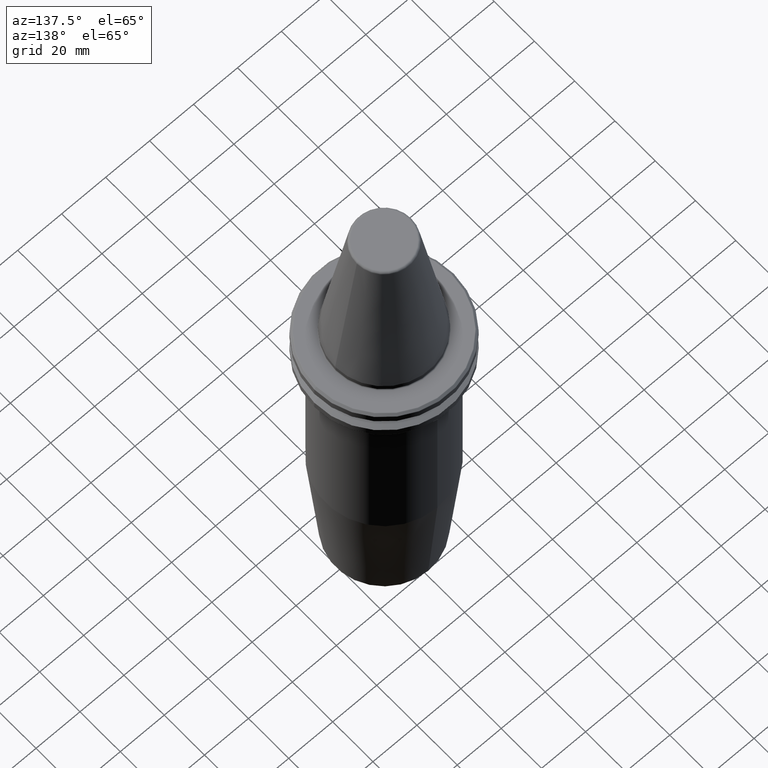
[diagram: clean part render]
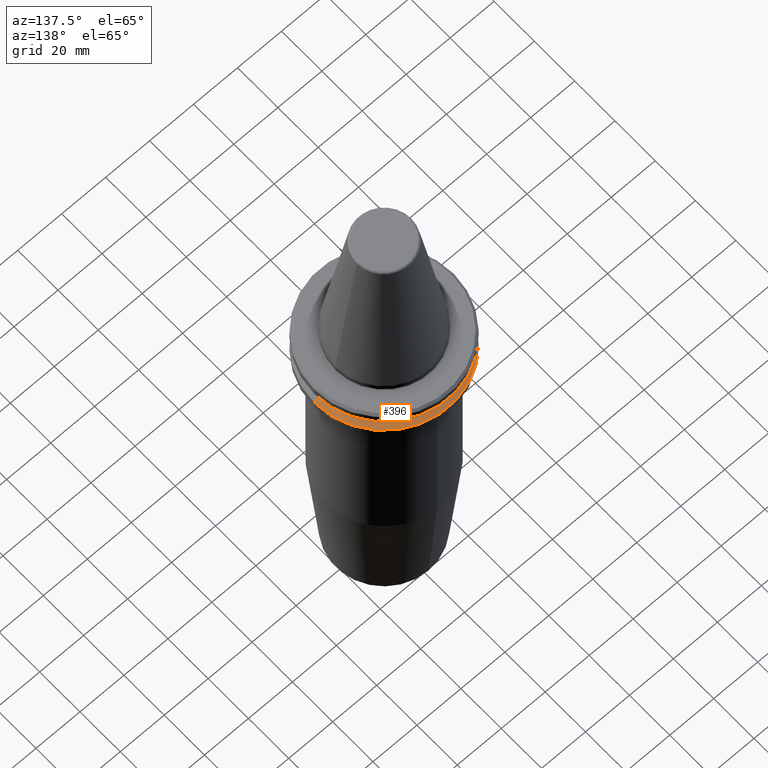
[diagram: same view with one face highlighted and labeled with its STEP entity id]
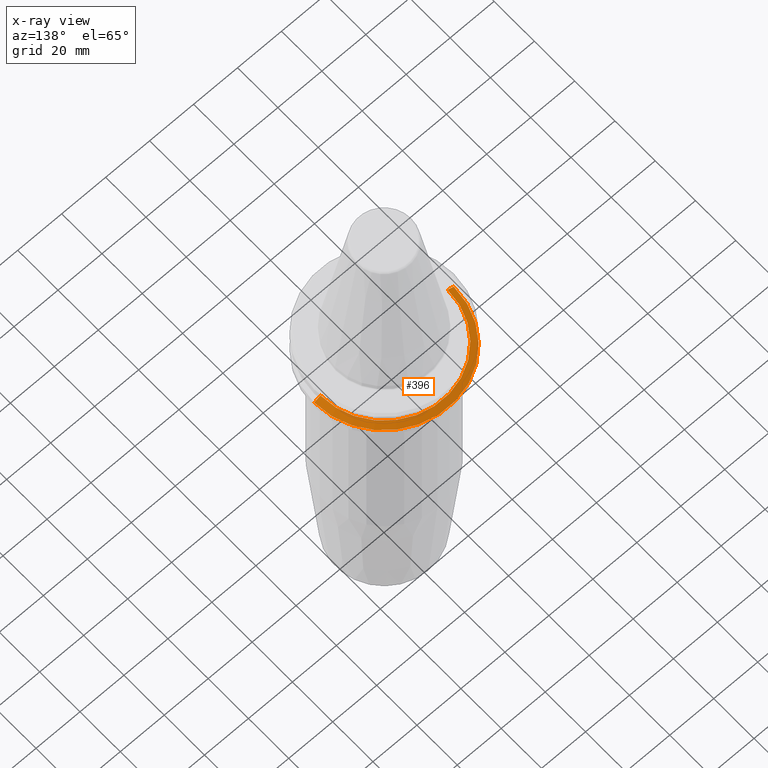
[diagram: x-ray of the same camera — body ghosted, the highlighted face saturated]
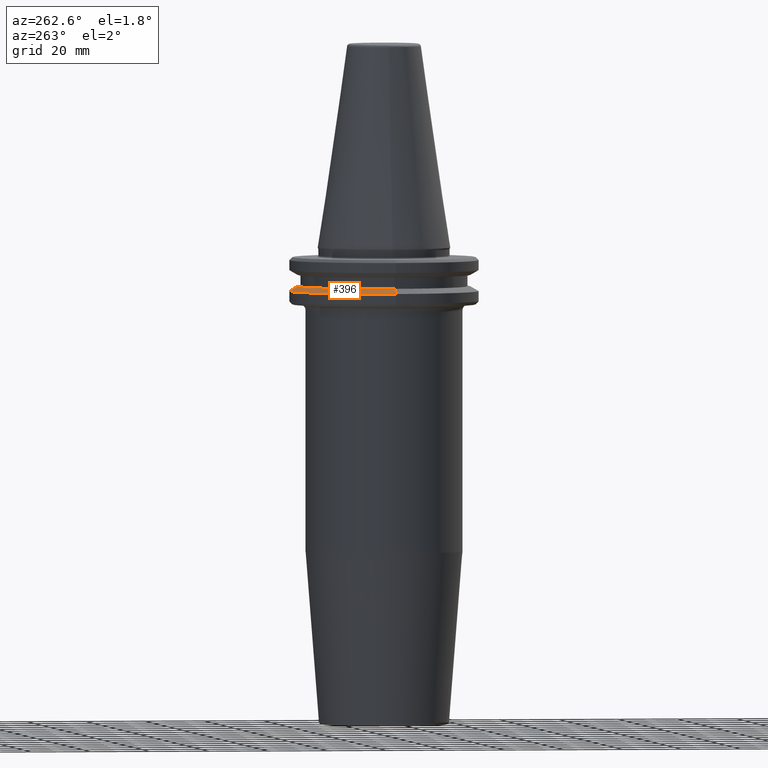
[diagram: same view with one face highlighted and labeled with its STEP entity id]
A machine part, auxiliary view. The second image highlights one B-rep face of the part: STEP entity #396.
The next image is the same camera in x-ray: the body ghosted, the highlighted face saturated — about 0% of this face is hidden behind the body in this view.
A second angle (auxiliary view) of the same face is appended — the face is thin or edge-on in the first view.
In plain terms, the highlighted conical surface has half-angle 60 deg.
Its self-contained STEP definition (entity closure, byte-faithful):
#21 = VERTEX_POINT ( 'NONE', #338 ) ;
#27 = EDGE_CURVE ( 'NONE', #21, #1158, #1024, .T. ) ;
#49 = CARTESIAN_POINT ( 'NONE',  ( -31.75000000000000000, 3.888253587292846500E-015, -14.62183664205671200 ) ) ;
#65 = AXIS2_PLACEMENT_3D ( 'NONE', #169, #240, #453 ) ;
#136 = CARTESIAN_POINT ( 'NONE',  ( -28.94089653438085100, 0.0000000000000000000, -13.00000000000001100 ) ) ;
#169 = CARTESIAN_POINT ( 'NONE',  ( 0.0000000000000000000, 0.0000000000000000000, -13.00000000000001100 ) ) ;
#226 = DIRECTION ( 'NONE',  ( -0.0000000000000000000, -0.0000000000000000000, 1.000000000000000000 ) ) ;
#240 = DIRECTION ( 'NONE',  ( 0.0000000000000000000, 0.0000000000000000000, -1.000000000000000000 ) ) ;
#298 = CARTESIAN_POINT ( 'NONE',  ( 0.0000000000000000000, 0.0000000000000000000, -13.00000000000001100 ) ) ;
#304 = EDGE_CURVE ( 'NONE', #409, #21, #363, .T. ) ;
#307 = CARTESIAN_POINT ( 'NONE',  ( 0.0000000000000000000, 0.0000000000000000000, -14.62183664205671200 ) ) ;
#335 = VECTOR ( 'NONE', #1163, 999.9999999999998900 ) ;
#338 = CARTESIAN_POINT ( 'NONE',  ( 31.75000000000000000, 0.0000000000000000000, -14.62183664205671200 ) ) ;
#354 = ORIENTED_EDGE ( 'NONE', *, *, #304, .T. ) ;
#363 = LINE ( 'NONE', #976, #335 ) ;
#372 = VECTOR ( 'NONE', #523, 999.9999999999998900 ) ;
#380 = ORIENTED_EDGE ( 'NONE', *, *, #27, .T. ) ;
#396 = ADVANCED_FACE ( 'NONE', ( #751 ), #468, .T. ) ;
#406 = EDGE_LOOP ( 'NONE', ( #569, #354, #380, #954 ) ) ;
#409 = VERTEX_POINT ( 'NONE', #1140 ) ;
#412 = CIRCLE ( 'NONE', #467, 28.94089653438085100 ) ;
#446 = DIRECTION ( 'NONE',  ( 1.000000000000000000, 0.0000000000000000000, 0.0000000000000000000 ) ) ;
#453 = DIRECTION ( 'NONE',  ( -1.000000000000000000, 0.0000000000000000000, 0.0000000000000000000 ) ) ;
#467 = AXIS2_PLACEMENT_3D ( 'NONE', #298, #226, #815 ) ;
#468 = CONICAL_SURFACE ( 'NONE', #65, 28.94089653438085100, 1.047197551196604300 ) ;
#523 = DIRECTION ( 'NONE',  ( -0.8660254037844420400, 0.0000000000000000000, -0.4999999999999943900 ) ) ;
#569 = ORIENTED_EDGE ( 'NONE', *, *, #755, .F. ) ;
#572 = EDGE_CURVE ( 'NONE', #1201, #1158, #886, .T. ) ;
#751 = FACE_OUTER_BOUND ( 'NONE', #406, .T. ) ;
#755 = EDGE_CURVE ( 'NONE', #409, #1201, #412, .T. ) ;
#786 = AXIS2_PLACEMENT_3D ( 'NONE', #307, #1170, #446 ) ;
#815 = DIRECTION ( 'NONE',  ( 1.000000000000000000, 0.0000000000000000000, 0.0000000000000000000 ) ) ;
#886 = LINE ( 'NONE', #136, #372 ) ;
#954 = ORIENTED_EDGE ( 'NONE', *, *, #572, .F. ) ;
#976 = CARTESIAN_POINT ( 'NONE',  ( 28.94089653438085100, 3.544237630528423800E-015, -13.00000000000001100 ) ) ;
#1024 = CIRCLE ( 'NONE', #786, 31.75000000000000000 ) ;
#1140 = CARTESIAN_POINT ( 'NONE',  ( 28.94089653438085100, 3.716245608910634800E-015, -13.00000000000001100 ) ) ;
#1158 = VERTEX_POINT ( 'NONE', #49 ) ;
#1163 = DIRECTION ( 'NONE',  ( 0.8660254037844420400, 1.060575238724911000E-016, -0.4999999999999943900 ) ) ;
#1170 = DIRECTION ( 'NONE',  ( -0.0000000000000000000, -0.0000000000000000000, 1.000000000000000000 ) ) ;
#1201 = VERTEX_POINT ( 'NONE', #1207 ) ;
#1207 = CARTESIAN_POINT ( 'NONE',  ( -28.94089653438085100, 0.0000000000000000000, -13.00000000000001100 ) ) ;